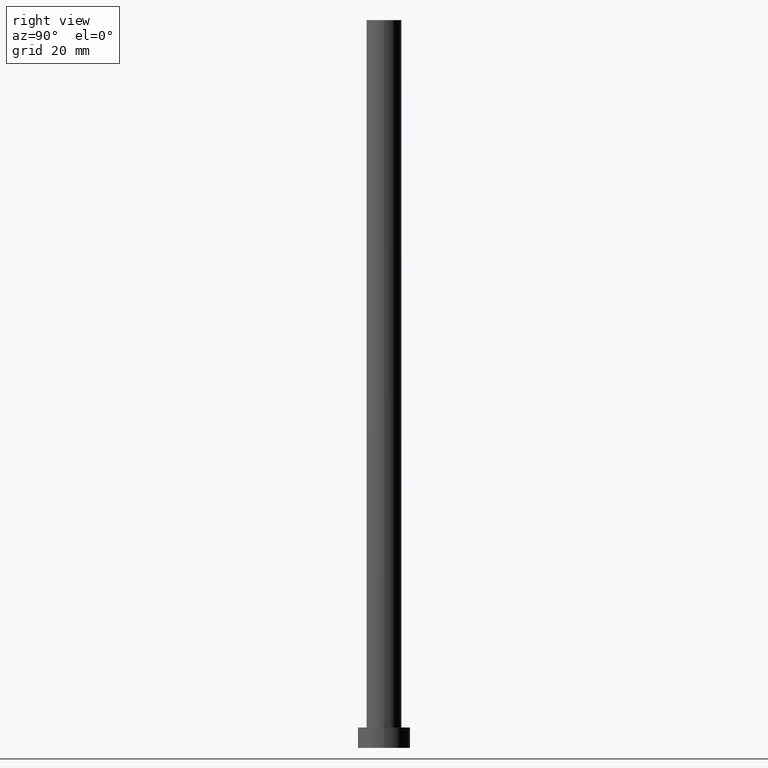
[diagram: clean part render]
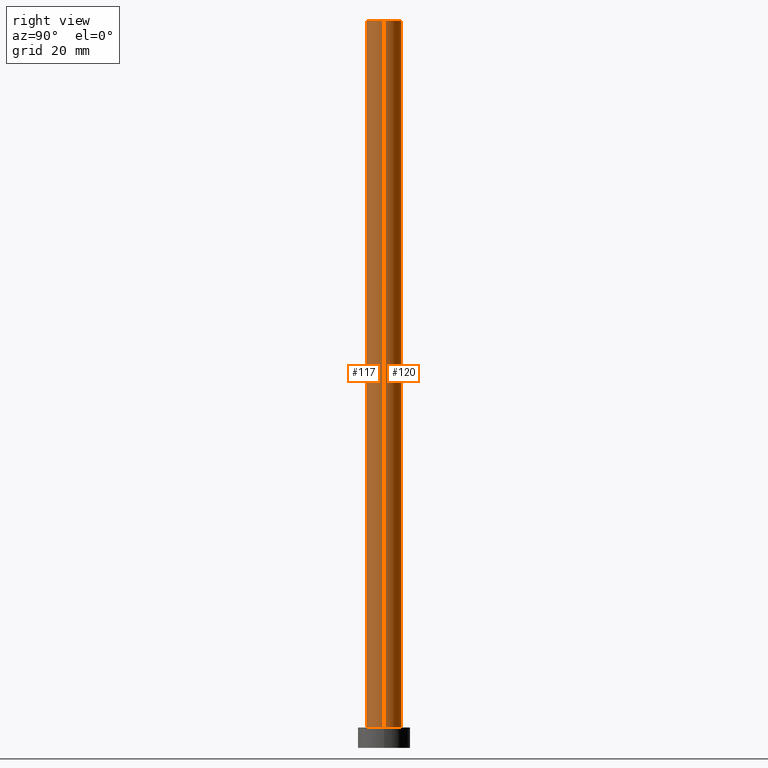
[diagram: same view with one multi-face feature highlighted, each face labeled with its STEP entity id]
A machine part, right view. The highlighted faces form ONE feature: a constant-radius fillet chain: 2 tangent blend faces with common blend radius 6 mm. The faces share edges in the B-rep.
Their STEP definitions:
[1] entity #120 (Cylinder):
#1 = ORIENTED_EDGE ( 'NONE', *, *, #48, .F. ) ;
#14 = DIRECTION ( 'NONE',  ( -0.000000000000000000, -0.000000000000000000, -1.000000000000000000 ) ) ;
#18 = CARTESIAN_POINT ( 'NONE',  ( 0.000000000000000000, 0.000000000000000000, 250.0000000000000000 ) ) ;
#21 = DIRECTION ( 'NONE',  ( -0.000000000000000000, -0.000000000000000000, -1.000000000000000000 ) ) ;
#23 = AXIS2_PLACEMENT_3D ( 'NONE', #182, #14, #83 ) ;
#32 = ORIENTED_EDGE ( 'NONE', *, *, #178, .T. ) ;
#36 = ORIENTED_EDGE ( 'NONE', *, *, #195, .T. ) ;
#48 = EDGE_CURVE ( 'NONE', #185, #168, #232, .T. ) ;
#49 = CARTESIAN_POINT ( 'NONE',  ( -6.000000000000000888, 0.000000000000000000, 7.000000000000000000 ) ) ;
#50 = DIRECTION ( 'NONE',  ( 1.000000000000000000, 0.000000000000000000, 0.000000000000000000 ) ) ;
#52 = VECTOR ( 'NONE', #227, 1000.000000000000000 ) ;
#58 = EDGE_CURVE ( 'NONE', #235, #185, #253, .T. ) ;
#76 = VECTOR ( 'NONE', #21, 1000.000000000000000 ) ;
#80 = CYLINDRICAL_SURFACE ( 'NONE', #23, 6.000000000000000888 ) ;
#83 = DIRECTION ( 'NONE',  ( -1.000000000000000000, 0.000000000000000000, 0.000000000000000000 ) ) ;
#89 = DIRECTION ( 'NONE',  ( 0.000000000000000000, 0.000000000000000000, 1.000000000000000000 ) ) ;
#100 = CARTESIAN_POINT ( 'NONE',  ( 6.000000000000000888, 7.347880794884120722E-16, 7.000000000000000000 ) ) ;
#116 = AXIS2_PLACEMENT_3D ( 'NONE', #140, #179, #50 ) ;
#120 = ADVANCED_FACE ( 'NONE', ( #201 ), #80, .T. ) ;
#128 = VERTEX_POINT ( 'NONE', #100 ) ;
#135 = CARTESIAN_POINT ( 'NONE',  ( 6.000000000000000888, 7.347880794884120722E-16, 250.0000000000000000 ) ) ;
#140 = CARTESIAN_POINT ( 'NONE',  ( 0.000000000000000000, 0.000000000000000000, 7.000000000000000000 ) ) ;
#148 = CARTESIAN_POINT ( 'NONE',  ( -6.000000000000000888, 0.000000000000000000, 250.0000000000000000 ) ) ;
#168 = VERTEX_POINT ( 'NONE', #49 ) ;
#178 = EDGE_CURVE ( 'NONE', #235, #128, #181, .T. ) ;
#179 = DIRECTION ( 'NONE',  ( 0.000000000000000000, 0.000000000000000000, 1.000000000000000000 ) ) ;
#181 = LINE ( 'NONE', #135, #52 ) ;
#182 = CARTESIAN_POINT ( 'NONE',  ( 0.000000000000000000, 0.000000000000000000, 250.0000000000000000 ) ) ;
#185 = VERTEX_POINT ( 'NONE', #220 ) ;
#195 = EDGE_CURVE ( 'NONE', #128, #168, #203, .T. ) ;
#200 = CARTESIAN_POINT ( 'NONE',  ( 6.000000000000000888, 7.347880794884120722E-16, 250.0000000000000000 ) ) ;
#201 = FACE_OUTER_BOUND ( 'NONE', #230, .T. ) ;
#203 = CIRCLE ( 'NONE', #116, 6.000000000000000888 ) ;
#214 = DIRECTION ( 'NONE',  ( 1.000000000000000000, 0.000000000000000000, 0.000000000000000000 ) ) ;
#220 = CARTESIAN_POINT ( 'NONE',  ( -6.000000000000000888, 0.000000000000000000, 250.0000000000000000 ) ) ;
#227 = DIRECTION ( 'NONE',  ( -0.000000000000000000, -0.000000000000000000, -1.000000000000000000 ) ) ;
#230 = EDGE_LOOP ( 'NONE', ( #254, #32, #36, #1 ) ) ;
#232 = LINE ( 'NONE', #148, #76 ) ;
#235 = VERTEX_POINT ( 'NONE', #200 ) ;
#238 = AXIS2_PLACEMENT_3D ( 'NONE', #18, #89, #214 ) ;
#253 = CIRCLE ( 'NONE', #238, 6.000000000000000888 ) ;
#254 = ORIENTED_EDGE ( 'NONE', *, *, #58, .F. ) ;
[2] entity #117 (Cylinder):
#2 = DIRECTION ( 'NONE',  ( 1.000000000000000000, 0.000000000000000000, 0.000000000000000000 ) ) ;
#3 = AXIS2_PLACEMENT_3D ( 'NONE', #250, #184, #103 ) ;
#8 = DIRECTION ( 'NONE',  ( 1.000000000000000000, 0.000000000000000000, 0.000000000000000000 ) ) ;
#21 = DIRECTION ( 'NONE',  ( -0.000000000000000000, -0.000000000000000000, -1.000000000000000000 ) ) ;
#28 = EDGE_CURVE ( 'NONE', #185, #235, #206, .T. ) ;
#37 = AXIS2_PLACEMENT_3D ( 'NONE', #213, #59, #8 ) ;
#48 = EDGE_CURVE ( 'NONE', #185, #168, #232, .T. ) ;
#49 = CARTESIAN_POINT ( 'NONE',  ( -6.000000000000000888, 0.000000000000000000, 7.000000000000000000 ) ) ;
#52 = VECTOR ( 'NONE', #227, 1000.000000000000000 ) ;
#57 = CARTESIAN_POINT ( 'NONE',  ( 0.000000000000000000, 0.000000000000000000, 250.0000000000000000 ) ) ;
#59 = DIRECTION ( 'NONE',  ( 0.000000000000000000, 0.000000000000000000, 1.000000000000000000 ) ) ;
#67 = EDGE_CURVE ( 'NONE', #168, #128, #118, .T. ) ;
#68 = EDGE_LOOP ( 'NONE', ( #229, #145, #199, #191 ) ) ;
#69 = FACE_OUTER_BOUND ( 'NONE', #68, .T. ) ;
#76 = VECTOR ( 'NONE', #21, 1000.000000000000000 ) ;
#96 = AXIS2_PLACEMENT_3D ( 'NONE', #57, #113, #2 ) ;
#100 = CARTESIAN_POINT ( 'NONE',  ( 6.000000000000000888, 7.347880794884120722E-16, 7.000000000000000000 ) ) ;
#103 = DIRECTION ( 'NONE',  ( -1.000000000000000000, 0.000000000000000000, 0.000000000000000000 ) ) ;
#105 = CYLINDRICAL_SURFACE ( 'NONE', #3, 6.000000000000000888 ) ;
#113 = DIRECTION ( 'NONE',  ( 0.000000000000000000, 0.000000000000000000, 1.000000000000000000 ) ) ;
#117 = ADVANCED_FACE ( 'NONE', ( #69 ), #105, .T. ) ;
#118 = CIRCLE ( 'NONE', #37, 6.000000000000000888 ) ;
#128 = VERTEX_POINT ( 'NONE', #100 ) ;
#135 = CARTESIAN_POINT ( 'NONE',  ( 6.000000000000000888, 7.347880794884120722E-16, 250.0000000000000000 ) ) ;
#145 = ORIENTED_EDGE ( 'NONE', *, *, #28, .F. ) ;
#148 = CARTESIAN_POINT ( 'NONE',  ( -6.000000000000000888, 0.000000000000000000, 250.0000000000000000 ) ) ;
#168 = VERTEX_POINT ( 'NONE', #49 ) ;
#178 = EDGE_CURVE ( 'NONE', #235, #128, #181, .T. ) ;
#181 = LINE ( 'NONE', #135, #52 ) ;
#184 = DIRECTION ( 'NONE',  ( -0.000000000000000000, -0.000000000000000000, -1.000000000000000000 ) ) ;
#185 = VERTEX_POINT ( 'NONE', #220 ) ;
#191 = ORIENTED_EDGE ( 'NONE', *, *, #67, .T. ) ;
#199 = ORIENTED_EDGE ( 'NONE', *, *, #48, .T. ) ;
#200 = CARTESIAN_POINT ( 'NONE',  ( 6.000000000000000888, 7.347880794884120722E-16, 250.0000000000000000 ) ) ;
#206 = CIRCLE ( 'NONE', #96, 6.000000000000000888 ) ;
#213 = CARTESIAN_POINT ( 'NONE',  ( 0.000000000000000000, 0.000000000000000000, 7.000000000000000000 ) ) ;
#220 = CARTESIAN_POINT ( 'NONE',  ( -6.000000000000000888, 0.000000000000000000, 250.0000000000000000 ) ) ;
#227 = DIRECTION ( 'NONE',  ( -0.000000000000000000, -0.000000000000000000, -1.000000000000000000 ) ) ;
#229 = ORIENTED_EDGE ( 'NONE', *, *, #178, .F. ) ;
#232 = LINE ( 'NONE', #148, #76 ) ;
#235 = VERTEX_POINT ( 'NONE', #200 ) ;
#250 = CARTESIAN_POINT ( 'NONE',  ( 0.000000000000000000, 0.000000000000000000, 250.0000000000000000 ) ) ;